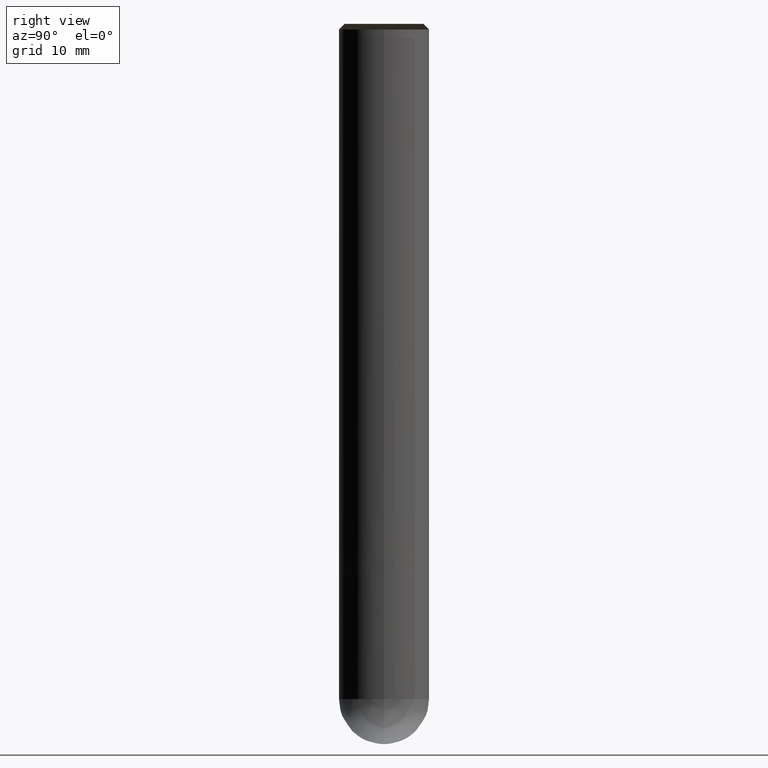
[diagram: clean part render]
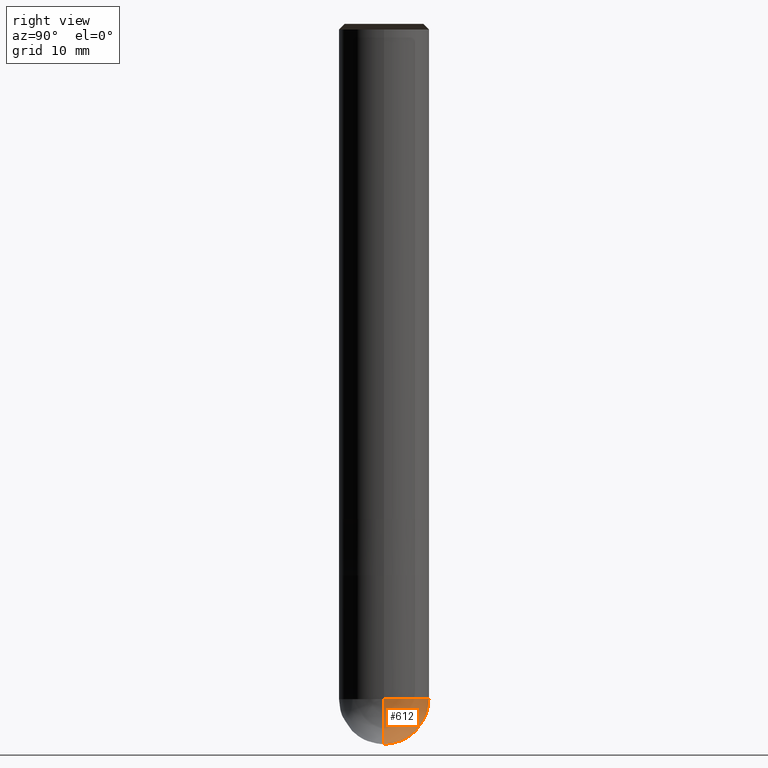
[diagram: same view with one face highlighted and labeled with its STEP entity id]
A machine part, right view. The second image highlights one B-rep face of the part: STEP entity #612.
In plain terms, the highlighted face is a freeform B-spline surface patch.
Its self-contained STEP definition (entity closure, byte-faithful):
#540=CARTESIAN_POINT('',(0.0,0.0,-20.0));
#541=CARTESIAN_POINT('',(4.0,0.0,-20.0));
#542=CARTESIAN_POINT('',(4.0,4.0,-20.0));
#543=CARTESIAN_POINT('',(0.0,4.0,-20.0));
#544=CARTESIAN_POINT('',(-4.0,4.0,-20.0));
#545=CARTESIAN_POINT('',(-4.0,0.0,-20.0));
#546=CARTESIAN_POINT('',(4.0,0.0,-16.0));
#547=CARTESIAN_POINT('',(4.0,4.0,-16.0));
#548=CARTESIAN_POINT('',(0.0,4.0,-16.0));
#549=CARTESIAN_POINT('',(-4.0,4.0,-16.0));
#550=CARTESIAN_POINT('',(-4.0,0.0,-16.0));
#597=(
BOUNDED_SURFACE()
B_SPLINE_SURFACE(2,2,(
(#540,#540,#540,#540,#540),
(#541,#542,#543,#544,#545),
(#546,#547,#548,#549,#550)
), .UNSPECIFIED.,.F.,.F.,.F.)
B_SPLINE_SURFACE_WITH_KNOTS((3,3),(3,2,3),(
0.0,1.0),(
0.0,0.5,1.0), .UNSPECIFIED.)
GEOMETRIC_REPRESENTATION_ITEM()
RATIONAL_B_SPLINE_SURFACE(((1.0,0.707106781187,1.0,0.707106781187,1.0),
(0.707106781187,0.5,0.707106781187,0.5,0.707106781187),
(1.0,0.707106781187,1.0,0.707106781187,1.0)
))
REPRESENTATION_ITEM('')
SURFACE()
);
#598=(
BOUNDED_CURVE()
B_SPLINE_CURVE(2,(#546,#547,#548,#549,#550),.UNSPECIFIED.,.F.,.F.)
B_SPLINE_CURVE_WITH_KNOTS((3,2,3),
(0.0,0.5,1.0),.UNSPECIFIED.)
CURVE()
GEOMETRIC_REPRESENTATION_ITEM()
RATIONAL_B_SPLINE_CURVE((1.0,0.707106781187,1.0,0.707106781187,1.0))
REPRESENTATION_ITEM('')
);
#599=(
BOUNDED_CURVE()
B_SPLINE_CURVE(2,(#550,#545,#540),.UNSPECIFIED.,.F.,.F.)
B_SPLINE_CURVE_WITH_KNOTS((3,3),
(0.0,1.0),.UNSPECIFIED.)
CURVE()
GEOMETRIC_REPRESENTATION_ITEM()
RATIONAL_B_SPLINE_CURVE((1.0,0.707106781187,1.0))
REPRESENTATION_ITEM('')
);
#600=(
BOUNDED_CURVE()
B_SPLINE_CURVE(2,(#540,#541,#546),.UNSPECIFIED.,.F.,.F.)
B_SPLINE_CURVE_WITH_KNOTS((3,3),
(0.0,1.0),.UNSPECIFIED.)
CURVE()
GEOMETRIC_REPRESENTATION_ITEM()
RATIONAL_B_SPLINE_CURVE((1.0,0.707106781187,1.0))
REPRESENTATION_ITEM('')
);
#601=VERTEX_POINT('',#540);
#602=VERTEX_POINT('',#546);
#603=VERTEX_POINT('',#550);
#604=EDGE_CURVE('',#602,#603,#598,.T.);
#605=EDGE_CURVE('',#603,#601,#599,.T.);
#606=EDGE_CURVE('',#601,#602,#600,.T.);
#607=ORIENTED_EDGE('',*,*,#604,.T.);
#608=ORIENTED_EDGE('',*,*,#605,.T.);
#609=ORIENTED_EDGE('',*,*,#606,.T.);
#610=EDGE_LOOP('',(#607,#608,#609));
#611=FACE_OUTER_BOUND('',#610,.T.);
#612=ADVANCED_FACE('',(#611),#597,.T.);